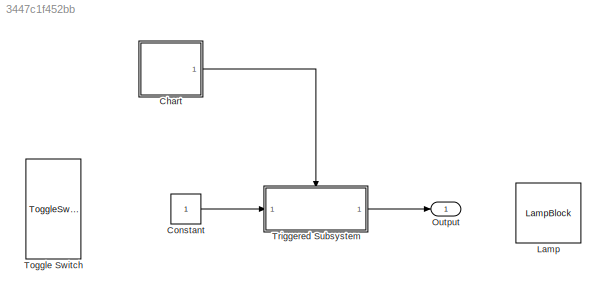
MODEL slx_3447c1f452bb
KIND model
CONFIG AbsTol = auto
CONFIG EnableMultiTasking = off
CONFIG FixedStep = auto
CONFIG MaxStep = auto
CONFIG MinStep = auto
CONFIG RelTol = 1e-3
CONFIG SampleTimeConstraint = Unconstrained
CONFIG SolverName = VariableStepAuto
CONFIG StartTime = 0.0
CONFIG StopTime = 10.0
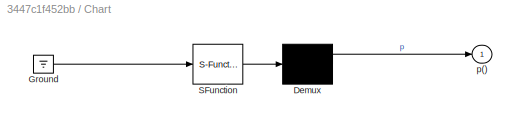
BLOCK [SubSystem] Chart
  ErrorFcn = Stateflow.Translate.translate
  PermitHierarchicalResolution = ExplicitOnly
  Ports = [0, 1]
  RequestExecContextInheritance = off
  SFBlockType = Chart
  TreatAsAtomicUnit = on
BLOCK [Demux] Chart/ Demux 
  Outputs = 1
  Ports = [1, 1]
BLOCK [Ground] Chart/ Ground 
BLOCK [S-Function] Chart/ SFunction 
  EnableBusSupport = on
  FunctionName = sf_sfun
  PortCounts = [1 1]
  Ports = [1, 1]
  SFcnIsStateOwnerBlock = off
  SFunctionDeploymentMode = off
  Tag = Stateflow S-Function 2
BLOCK [Outport] Chart/p()
BLOCK [Constant] Constant
BLOCK [LampBlock] Lamp
  LabelPosition = Hide
BLOCK [Outport] Output
BLOCK [ToggleSwitchBlock] Toggle Switch
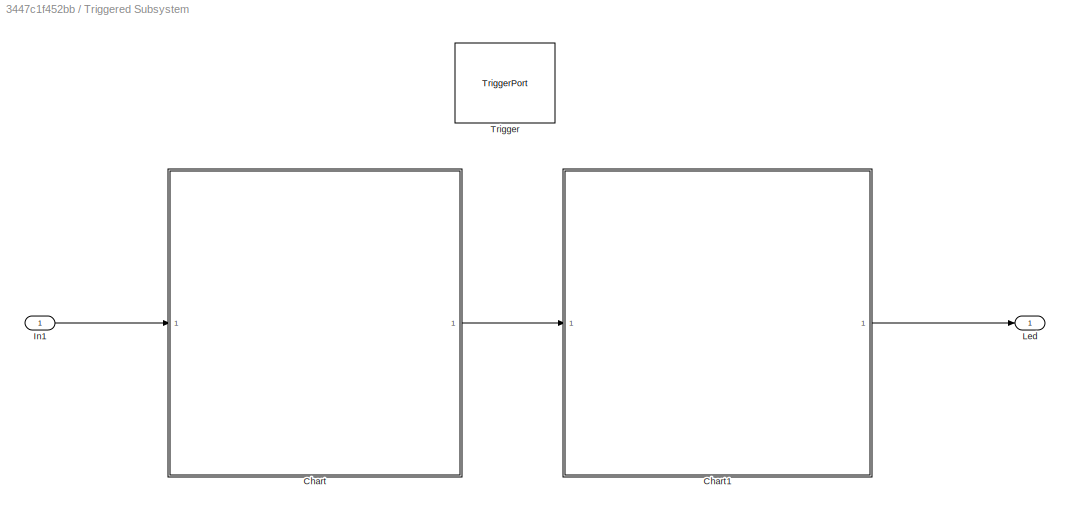
BLOCK [SubSystem] Triggered Subsystem
  Ports = [1, 1, 0, 1]
  RequestExecContextInheritance = off
  TreatAsAtomicUnit = on
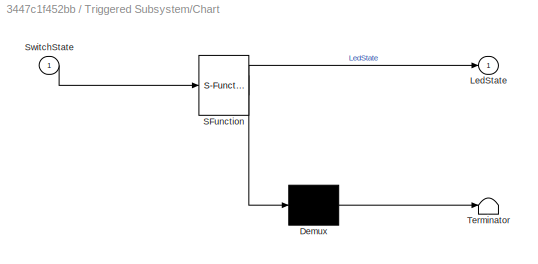
BLOCK [SubSystem] Triggered Subsystem/Chart
  ErrorFcn = Stateflow.Translate.translate
  PermitHierarchicalResolution = ExplicitOnly
  Ports = [1, 1]
  RequestExecContextInheritance = off
  SFBlockType = Chart
  TreatAsAtomicUnit = on
BLOCK [Demux] Triggered Subsystem/Chart/ Demux 
  Outputs = 1
  Ports = [1, 1]
BLOCK [S-Function] Triggered Subsystem/Chart/ SFunction 
  EnableBusSupport = on
  FunctionName = sf_sfun
  PortCounts = [1 2]
  Ports = [1, 2]
  SFcnIsStateOwnerBlock = off
  SFunctionDeploymentMode = off
  Tag = Stateflow S-Function 3
BLOCK [Terminator] Triggered Subsystem/Chart/ Terminator 
BLOCK [Outport] Triggered Subsystem/Chart/LedState
BLOCK [Inport] Triggered Subsystem/Chart/SwitchState
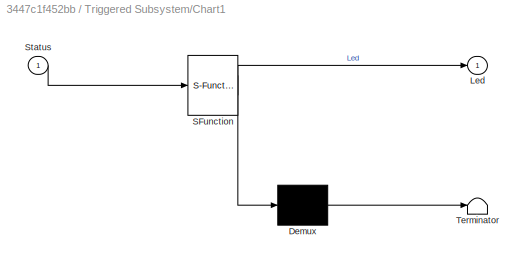
BLOCK [SubSystem] Triggered Subsystem/Chart1
  ErrorFcn = Stateflow.Translate.translate
  PermitHierarchicalResolution = ExplicitOnly
  Ports = [1, 1]
  RequestExecContextInheritance = off
  SFBlockType = Chart
  TreatAsAtomicUnit = on
BLOCK [Demux] Triggered Subsystem/Chart1/ Demux 
  Outputs = 1
  Ports = [1, 1]
BLOCK [S-Function] Triggered Subsystem/Chart1/ SFunction 
  EnableBusSupport = on
  FunctionName = sf_sfun
  PortCounts = [1 2]
  Ports = [1, 2]
  SFcnIsStateOwnerBlock = off
  SFunctionDeploymentMode = off
  Tag = Stateflow S-Function 1
BLOCK [Terminator] Triggered Subsystem/Chart1/ Terminator 
BLOCK [Outport] Triggered Subsystem/Chart1/Led
BLOCK [Inport] Triggered Subsystem/Chart1/Status
BLOCK [Inport] Triggered Subsystem/In1
BLOCK [Outport] Triggered Subsystem/Led
BLOCK [TriggerPort] Triggered Subsystem/Trigger
  Ports = []
  StatesWhenEnabling = held
  TriggerType = function-call
  VariantControl = (inherit)
LINE Chart:1 -> Triggered Subsystem:trigger
LINE Constant:1 -> Triggered Subsystem:1
LINE Triggered Subsystem/Chart1:1 -> Triggered Subsystem/Led:1
LINE Triggered Subsystem/Chart:1 -> Triggered Subsystem/Chart1:1
LINE Triggered Subsystem/In1:1 -> Triggered Subsystem/Chart:1
LINE Triggered Subsystem:1 -> Output:1
CHART Triggered
Subsystem/Chart1 states=0 transitions=6
CHART Chart states=1 transitions=2
  STATE_LABEL 'Counter\n\nen:\nex:'
CHART Triggered
Subsystem/Chart states=0 transitions=6
CHART  states=0 transitions=0
CHART  states=0 transitions=0
CHART  states=0 transitions=0
